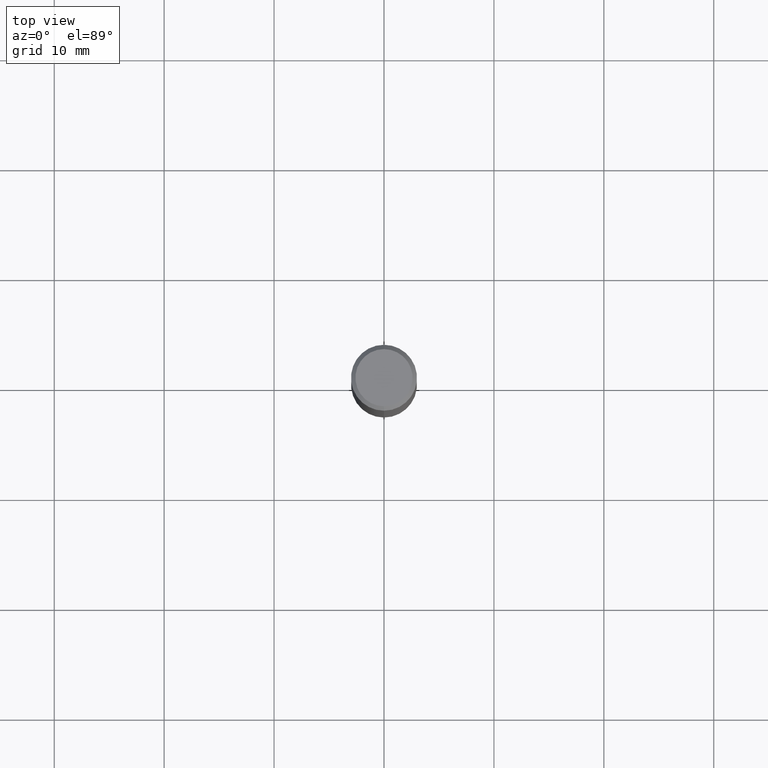
[diagram: clean part render]
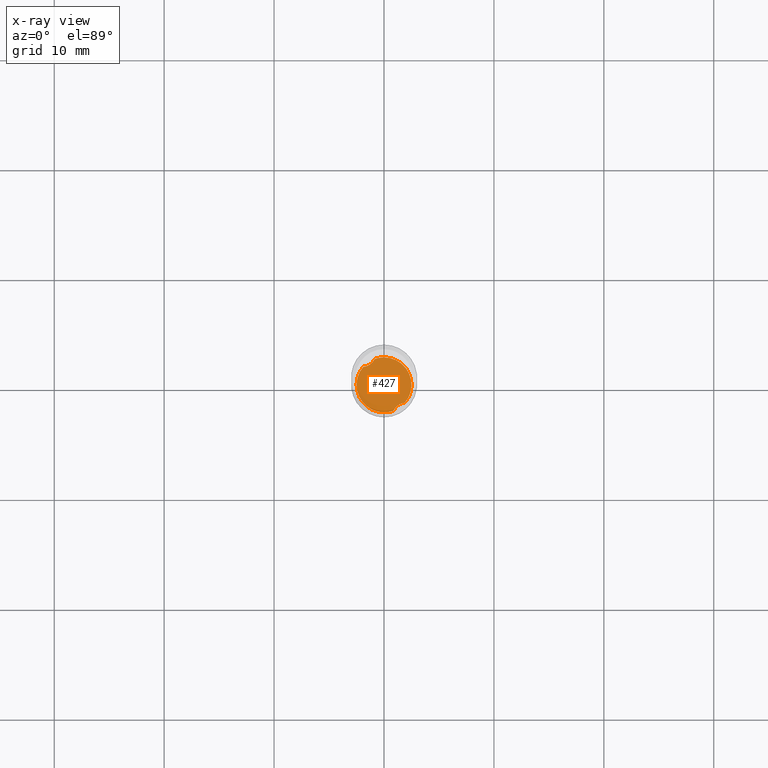
[diagram: x-ray — body ghosted, one internal face saturated and labeled with its STEP entity id]
A machine part, top view, then the same camera in x-ray: the body is ghosted and one INTERNAL B-rep face — a face not visible from any outside direction — is saturated and labeled: STEP entity #427.
In plain terms, the highlighted planar face has unit normal (-0, 0, 1).
Its self-contained STEP definition (entity closure, byte-faithful):
#279=EDGE_CURVE('',#559,#407,#771,.T.);
#285=VERTEX_POINT('',#777);
#407=VERTEX_POINT('',#912);
#427=ADVANCED_FACE('',(#934),#935,.T.);
#431=VERTEX_POINT('',#939);
#439=VERTEX_POINT('',#948);
#443=EDGE_CURVE('',#431,#285,#952,.T.);
#461=EDGE_CURVE('',#407,#439,#972,.T.);
#559=VERTEX_POINT('',#1077);
#641=VERTEX_POINT('',#1171);
#673=EDGE_CURVE('',#285,#641,#1205,.T.);
#675=EDGE_CURVE('',#559,#641,#1207,.T.);
#701=EDGE_CURVE('',#431,#439,#1233,.T.);
#771=CIRCLE('',#1535,2.4999);
#777=CARTESIAN_POINT('',(-3.05956767359927E-016,2.4999,-38.0));
#912=CARTESIAN_POINT('',(3.05941161432633E-016,-2.4999,-38.0));
#934=FACE_OUTER_BOUND('',#2546,.T.);
#935=PLANE('',#2547);
#939=CARTESIAN_POINT('',(-0.854254278690824,2.34941474357731,-38.0));
#948=CARTESIAN_POINT('',(-1.89294965054159,1.63286301645744,-38.0));
#952=CIRCLE('',#2657,2.4999);
#972=CIRCLE('',#2691,2.4999);
#1077=CARTESIAN_POINT('',(0.854254278690827,-2.3494147435773,-38.0));
#1171=CARTESIAN_POINT('',(1.89294965054159,-1.63286301645744,-38.0));
#1205=CIRCLE('',#4829,2.4999);
#1207=B_SPLINE_CURVE_WITH_KNOTS('',3,(#4832,#4833,#4834,#4835,#4836,#4837,#4838,#4839,#4840,#4841,#4842,#4843),.UNSPECIFIED.,.F.,.F.,(4,2,2,2,2,4),(0.0,0.546610759441044,1.04428614259567,1.54337661247923,1.8729109885862,2.21744017525934),.UNSPECIFIED.);
#1233=B_SPLINE_CURVE_WITH_KNOTS('',3,(#4921,#4922,#4923,#4924,#4925,#4926,#4927,#4928,#4929,#4930,#4931,#4932),.UNSPECIFIED.,.F.,.F.,(4,2,2,2,2,4),(0.0,0.546610759441123,1.04428614259583,1.54337661247951,1.87291098858658,2.21744017525971),.UNSPECIFIED.);
#1535=AXIS2_PLACEMENT_3D('',#5194,#5195,#5196);
#2546=EDGE_LOOP('',(#5377,#5378,#5379,#5380,#5381,#5382));
#2547=AXIS2_PLACEMENT_3D('',#5383,#5384,#5385);
#2657=AXIS2_PLACEMENT_3D('',#5397,#5398,#5399);
#2691=AXIS2_PLACEMENT_3D('',#5421,#5422,#5423);
#4829=AXIS2_PLACEMENT_3D('',#5713,#5714,#5715);
#4832=CARTESIAN_POINT('',(0.77446938444466,-2.5499,-38.0));
#4833=CARTESIAN_POINT('',(0.829262580566437,-2.37613046128546,-38.0));
#4834=CARTESIAN_POINT('',(0.914555981602328,-2.21479010620971,-37.9999999999918));
#4835=CARTESIAN_POINT('',(1.13840373266715,-1.94923688572362,-37.9999999999918));
#4836=CARTESIAN_POINT('',(1.26768540000005,-1.84588000671945,-38.0000000000004));
#4837=CARTESIAN_POINT('',(1.56239769409013,-1.69444166742258,-38.0000000000004));
#4838=CARTESIAN_POINT('',(1.72262856503765,-1.64921326820745,-38.0000000000001));
#4839=CARTESIAN_POINT('',(1.99712116742588,-1.62284830577956,-38.0000000000001));
#4840=CARTESIAN_POINT('',(2.10708537188687,-1.62528608225171,-38.0));
#4841=CARTESIAN_POINT('',(2.32967953527968,-1.65393297399047,-38.0));
#4842=CARTESIAN_POINT('',(2.44156370348642,-1.68112742310306,-38.0));
#4843=CARTESIAN_POINT('',(2.5499,-1.71902286515707,-38.0));
#4921=CARTESIAN_POINT('',(-0.774469384444656,2.5499,-38.0));
#4922=CARTESIAN_POINT('',(-0.82926258056644,2.37613046128544,-38.0));
#4923=CARTESIAN_POINT('',(-0.914555981602334,2.21479010620971,-37.9999999999918));
#4924=CARTESIAN_POINT('',(-1.13840373266714,1.94923688572363,-37.9999999999918));
#4925=CARTESIAN_POINT('',(-1.26768540000004,1.84588000671945,-38.0000000000004));
#4926=CARTESIAN_POINT('',(-1.56239769409015,1.69444166742258,-38.0000000000004));
#4927=CARTESIAN_POINT('',(-1.72262856503769,1.64921326820745,-38.0));
#4928=CARTESIAN_POINT('',(-1.99712116742587,1.62284830577957,-38.0));
#4929=CARTESIAN_POINT('',(-2.10708537188683,1.62528608225171,-38.0));
#4930=CARTESIAN_POINT('',(-2.32967953527967,1.65393297399047,-38.0));
#4931=CARTESIAN_POINT('',(-2.44156370348641,1.68112742310305,-38.0));
#4932=CARTESIAN_POINT('',(-2.5499,1.71902286515707,-38.0));
#5194=CARTESIAN_POINT('',(0.0,0.0,-38.0));
#5195=DIRECTION('',(0.0,0.0,-1.0));
#5196=DIRECTION('',(0.0,1.0,0.0));
#5377=ORIENTED_EDGE('',*,*,#675,.T.);
#5378=ORIENTED_EDGE('',*,*,#673,.F.);
#5379=ORIENTED_EDGE('',*,*,#443,.F.);
#5380=ORIENTED_EDGE('',*,*,#701,.T.);
#5381=ORIENTED_EDGE('',*,*,#461,.F.);
#5382=ORIENTED_EDGE('',*,*,#279,.F.);
#5383=CARTESIAN_POINT('',(0.0,1.24995,-38.0));
#5384=DIRECTION('',(-0.0,0.0,1.0));
#5385=DIRECTION('',(0.0,-1.0,0.0));
#5397=CARTESIAN_POINT('',(0.0,0.0,-38.0));
#5398=DIRECTION('',(0.0,0.0,-1.0));
#5399=DIRECTION('',(0.0,1.0,0.0));
#5421=CARTESIAN_POINT('',(0.0,0.0,-38.0));
#5422=DIRECTION('',(0.0,0.0,-1.0));
#5423=DIRECTION('',(0.0,1.0,0.0));
#5713=CARTESIAN_POINT('',(0.0,0.0,-38.0));
#5714=DIRECTION('',(0.0,0.0,-1.0));
#5715=DIRECTION('',(0.0,1.0,0.0));